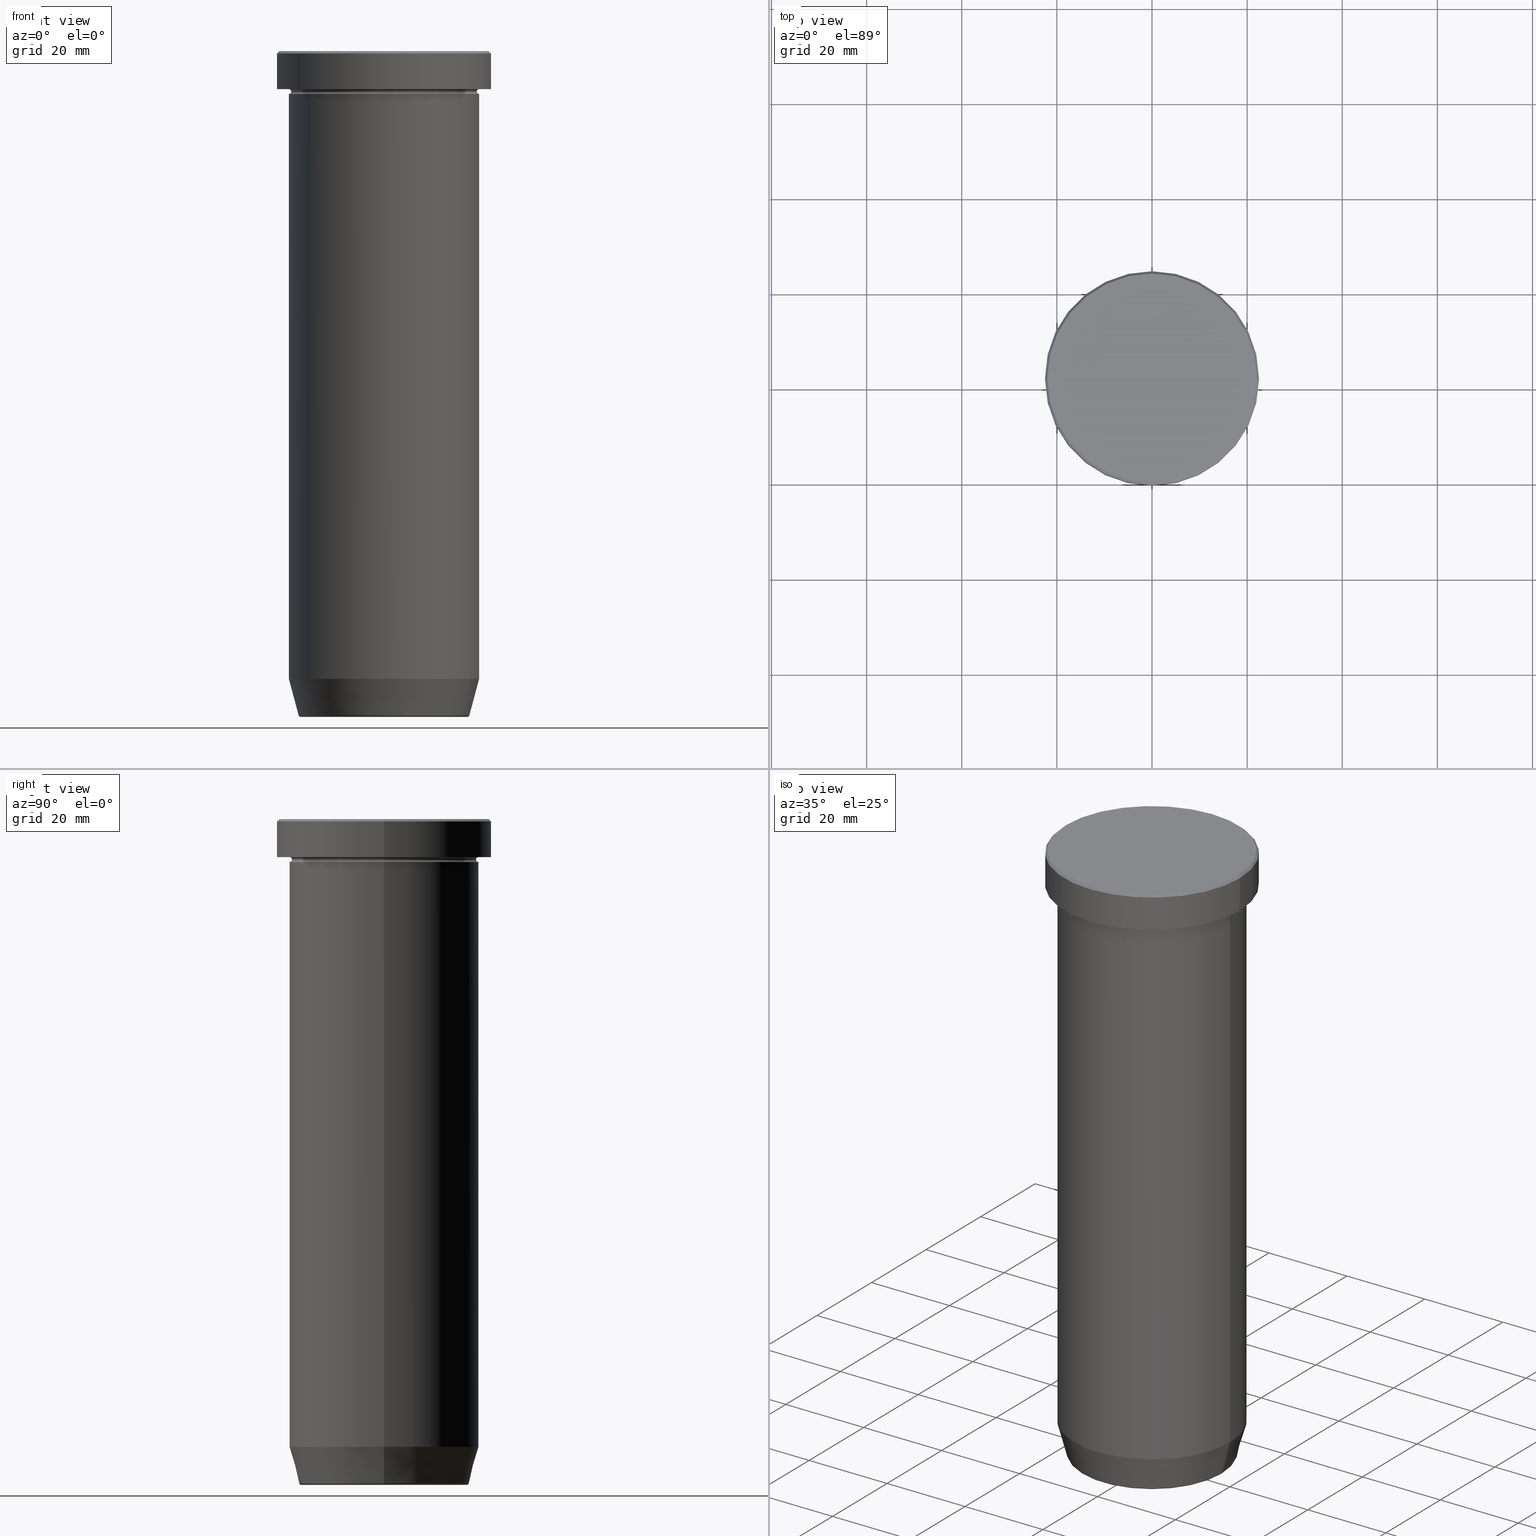
[diagram: canonical four-view strip — front | top / right | iso, engineering-drawing reading convention]
A machine part, canonical four-view strip (front | top / right | iso — engineering-drawing reading convention). The complete STEP part file that produces these views, byte-faithful:
ISO-10303-21;
HEADER;
FILE_DESCRIPTION (( 'STEP AP203' ),
    '1' );
FILE_NAME ('f0d2.STEP',
    '2024-01-02T19:13:32',
    ( '' ),
    ( '' ),
    'SwSTEP 2.0',
    'SolidWorks 2019',
    '' );
FILE_SCHEMA (( 'CONFIG_CONTROL_DESIGN' ));
ENDSEC;

DATA;
#1 = DIRECTION ( 'NONE',  ( -0.000000000000000000, -0.000000000000000000, 1.000000000000000000 ) ) ;
#2 = VERTEX_POINT ( 'NONE', #518 ) ;
#3 = CARTESIAN_POINT ( 'NONE',  ( 0.000000000000000000, 0.000000000000000000, 0.000000000000000000 ) ) ;
#4 = ORIENTED_EDGE ( 'NONE', *, *, #315, .T. ) ;
#5 = EDGE_CURVE ( 'NONE', #394, #498, #497, .T. ) ;
#6 = AXIS2_PLACEMENT_3D ( 'NONE', #367, #561, #52 ) ;
#7 = DIRECTION ( 'NONE',  ( -0.000000000000000000, -0.000000000000000000, 1.000000000000000000 ) ) ;
#8 = ORIENTED_EDGE ( 'NONE', *, *, #281, .F. ) ;
#9 = ADVANCED_FACE ( 'NONE', ( #467 ), #372, .T. ) ;
#10 = EDGE_CURVE ( 'NONE', #368, #412, #303, .T. ) ;
#11 = DIRECTION ( 'NONE',  ( -1.000000000000000000, 0.000000000000000000, 0.000000000000000000 ) ) ;
#12 = ORIENTED_EDGE ( 'NONE', *, *, #471, .T. ) ;
#13 = FACE_OUTER_BOUND ( 'NONE', #399, .T. ) ;
#14 = CIRCLE ( 'NONE', #168, 17.47274296656153680 ) ;
#15 = ORGANIZATION ( 'NEUR�EN�', 'NEUR�EN�', '' ) ;
#16 = DIRECTION ( 'NONE',  ( 0.000000000000000000, -1.000000000000000000, 0.000000000000000000 ) ) ;
#17 = CARTESIAN_POINT ( 'NONE',  ( -17.95570587970606979, 2.324116685748020582E-15, -139.6294095225512706 ) ) ;
#18 = DIRECTION ( 'NONE',  ( 0.000000000000000000, 0.000000000000000000, -1.000000000000000000 ) ) ;
#19 = CC_DESIGN_DATE_AND_TIME_ASSIGNMENT ( #304, #462, ( #503 ) ) ;
#20 = FACE_OUTER_BOUND ( 'NONE', #93, .T. ) ;
#21 = DIRECTION ( 'NONE',  ( -1.000000000000000000, 1.224646799147349509E-16, 0.000000000000000000 ) ) ;
#22 = VECTOR ( 'NONE', #161, 1000.000000000000000 ) ;
#23 = AXIS2_PLACEMENT_3D ( 'NONE', #318, #320, #515 ) ;
#24 = DIRECTION ( 'NONE',  ( -1.000000000000000000, -1.224646799147349509E-16, 0.000000000000000000 ) ) ;
#25 = DIRECTION ( 'NONE',  ( 1.000000000000000000, 0.000000000000000000, 0.000000000000000000 ) ) ;
#26 = EDGE_LOOP ( 'NONE', ( #404, #257, #374, #231 ) ) ;
#27 = EDGE_CURVE ( 'NONE', #2, #327, #236, .T. ) ;
#28 = DATE_AND_TIME ( #175, #402 ) ;
#29 = CARTESIAN_POINT ( 'NONE',  ( -17.85640646055101399, 2.186779101618792051E-15, -140.0000000000000000 ) ) ;
#30 = ORIENTED_EDGE ( 'NONE', *, *, #298, .T. ) ;
#31 = CARTESIAN_POINT ( 'NONE',  ( -20.00000000000000355, 2.449293598294706907E-15, 0.000000000000000000 ) ) ;
#32 = ORIENTED_EDGE ( 'NONE', *, *, #400, .T. ) ;
#33 = VECTOR ( 'NONE', #473, 1000.000000000000000 ) ;
#34 = CARTESIAN_POINT ( 'NONE',  ( 20.00000000000000000, 0.000000000000000000, -35.00000000000000000 ) ) ;
#35 = AXIS2_PLACEMENT_3D ( 'NONE', #385, #289, #243 ) ;
#36 = EDGE_LOOP ( 'NONE', ( #364, #177, #225, #43 ) ) ;
#37 = DIRECTION ( 'NONE',  ( -0.000000000000000000, -0.000000000000000000, 1.000000000000000000 ) ) ;
#38 = EDGE_LOOP ( 'NONE', ( #353, #76 ) ) ;
#39 = APPROVAL ( #272, 'NEUR�EN�' ) ;
#40 = SHAPE_DEFINITION_REPRESENTATION ( #495, #376 ) ;
#41 = CARTESIAN_POINT ( 'NONE',  ( 0.000000000000000000, 0.000000000000000000, -140.0000000000000000 ) ) ;
#42 = APPLICATION_CONTEXT ( 'configuration controlled 3d designs of mechanical parts and assemblies' ) ;
#43 = ORIENTED_EDGE ( 'NONE', *, *, #261, .F. ) ;
#44 = DIRECTION ( 'NONE',  ( 1.000000000000000000, 0.000000000000000000, 0.000000000000000000 ) ) ;
#45 = AXIS2_PLACEMENT_3D ( 'NONE', #166, #446, #346 ) ;
#46 = ORIENTED_EDGE ( 'NONE', *, *, #447, .F. ) ;
#47 = AXIS2_PLACEMENT_3D ( 'NONE', #460, #48, #91 ) ;
#48 = DIRECTION ( 'NONE',  ( -0.000000000000000000, -0.000000000000000000, 1.000000000000000000 ) ) ;
#49 = DIRECTION ( 'NONE',  ( 0.000000000000000000, 0.000000000000000000, -1.000000000000000000 ) ) ;
#50 = FACE_OUTER_BOUND ( 'NONE', #267, .T. ) ;
#51 = ORIENTED_EDGE ( 'NONE', *, *, #482, .F. ) ;
#52 = DIRECTION ( 'NONE',  ( 1.000000000000000000, 0.000000000000000000, 0.000000000000000000 ) ) ;
#53 = ORIENTED_EDGE ( 'NONE', *, *, #27, .F. ) ;
#54 = CIRCLE ( 'NONE', #386, 0.5000000000000004441 ) ;
#55 = EDGE_CURVE ( 'NONE', #255, #470, #14, .T. ) ;
#56 = ADVANCED_FACE ( 'NONE', ( #13 ), #334, .F. ) ;
#57 = CIRCLE ( 'NONE', #210, 22.50000000000000000 ) ;
#58 = DIRECTION ( 'NONE',  ( 1.000000000000000000, 0.000000000000000000, 0.000000000000000000 ) ) ;
#59 = ORIENTED_EDGE ( 'NONE', *, *, #174, .T. ) ;
#60 = CC_DESIGN_PERSON_AND_ORGANIZATION_ASSIGNMENT ( #88, #599, ( #458 ) ) ;
#61 = DIRECTION ( 'NONE',  ( 1.000000000000000000, 0.000000000000000000, 0.000000000000000000 ) ) ;
#62 = CARTESIAN_POINT ( 'NONE',  ( 0.000000000000000000, 0.000000000000000000, -140.0000000000000000 ) ) ;
#63 = CIRCLE ( 'NONE', #397, 22.00000000000000000 ) ;
#64 = AXIS2_PLACEMENT_3D ( 'NONE', #195, #16, #202 ) ;
#65 = DIRECTION ( 'NONE',  ( -0.000000000000000000, -0.000000000000000000, 1.000000000000000000 ) ) ;
#66 = CARTESIAN_POINT ( 'NONE',  ( 0.000000000000000000, 0.000000000000000000, -140.0000000000000000 ) ) ;
#67 = ADVANCED_FACE ( 'NONE', ( #436 ), #251, .F. ) ;
#68 = APPROVAL_PERSON_ORGANIZATION ( #186, #39, #125 ) ;
#69 = CYLINDRICAL_SURFACE ( 'NONE', #79, 22.50000000000000000 ) ;
#70 = FACE_OUTER_BOUND ( 'NONE', #454, .T. ) ;
#71 = DIRECTION ( 'NONE',  ( -0.000000000000000000, -0.000000000000000000, 1.000000000000000000 ) ) ;
#72 = AXIS2_PLACEMENT_3D ( 'NONE', #442, #352, #546 ) ;
#73 = DATE_AND_TIME ( #85, #339 ) ;
#74 = CARTESIAN_POINT ( 'NONE',  ( 0.000000000000000000, 0.000000000000000000, 0.000000000000000000 ) ) ;
#75 = DIRECTION ( 'NONE',  ( 1.000000000000000000, 0.000000000000000000, 0.000000000000000000 ) ) ;
#76 = ORIENTED_EDGE ( 'NONE', *, *, #550, .T. ) ;
#77 = CARTESIAN_POINT ( 'NONE',  ( 0.000000000000000000, 0.000000000000000000, -139.5000000000000000 ) ) ;
#78 = ORIENTED_EDGE ( 'NONE', *, *, #383, .T. ) ;
#79 = AXIS2_PLACEMENT_3D ( 'NONE', #204, #200, #248 ) ;
#80 = AXIS2_PLACEMENT_3D ( 'NONE', #477, #106, #24 ) ;
#81 = ADVANCED_FACE ( 'NONE', ( #527 ), #69, .T. ) ;
#82 = LINE ( 'NONE', #502, #137 ) ;
#83 = CIRCLE ( 'NONE', #47, 22.50000000000000000 ) ;
#84 = VERTEX_POINT ( 'NONE', #381 ) ;
#85 = CALENDAR_DATE ( 2024, 2, 1 ) ;
#86 = DIRECTION ( 'NONE',  ( -1.000000000000000000, 1.224646799147349509E-16, 0.000000000000000000 ) ) ;
#87 = ORIENTED_EDGE ( 'NONE', *, *, #281, .T. ) ;
#88 = PERSON_AND_ORGANIZATION ( #205, #15 ) ;
#89 = DIRECTION ( 'NONE',  ( -0.000000000000000000, -0.000000000000000000, 1.000000000000000000 ) ) ;
#90 = ORIENTED_EDGE ( 'NONE', *, *, #163, .F. ) ;
#91 = DIRECTION ( 'NONE',  ( 1.000000000000000000, 0.000000000000000000, 0.000000000000000000 ) ) ;
#92 = AXIS2_PLACEMENT_3D ( 'NONE', #554, #134, #49 ) ;
#93 = EDGE_LOOP ( 'NONE', ( #191, #516, #217, #214 ) ) ;
#94 = CIRCLE ( 'NONE', #245, 20.00000000000000000 ) ;
#95 = CYLINDRICAL_SURFACE ( 'NONE', #355, 20.00000000000000355 ) ;
#96 = ORIENTED_EDGE ( 'NONE', *, *, #464, .F. ) ;
#97 = DIRECTION ( 'NONE',  ( 1.000000000000000000, 0.000000000000000000, 0.000000000000000000 ) ) ;
#98 = VERTEX_POINT ( 'NONE', #379 ) ;
#99 = CARTESIAN_POINT ( 'NONE',  ( 0.000000000000000000, 0.000000000000000000, -0.5000000000000073275 ) ) ;
#100 = EDGE_CURVE ( 'NONE', #344, #412, #153, .T. ) ;
#101 = VERTEX_POINT ( 'NONE', #569 ) ;
#102 = AXIS2_PLACEMENT_3D ( 'NONE', #577, #71, #250 ) ;
#103 = CARTESIAN_POINT ( 'NONE',  ( -20.00000000000000355, 2.449293598294706907E-15, -132.0000000000000000 ) ) ;
#104 = ORIENTED_EDGE ( 'NONE', *, *, #464, .T. ) ;
#105 = EDGE_CURVE ( 'NONE', #394, #412, #54, .T. ) ;
#106 = DIRECTION ( 'NONE',  ( -1.224646799147353207E-16, 1.000000000000000000, 0.000000000000000000 ) ) ;
#107 = FACE_OUTER_BOUND ( 'NONE', #441, .T. ) ;
#108 = FACE_OUTER_BOUND ( 'NONE', #122, .T. ) ;
#109 = CIRCLE ( 'NONE', #444, 20.00000000000000355 ) ;
#110 = DIRECTION ( 'NONE',  ( -1.000000000000000000, 0.000000000000000000, 0.000000000000000000 ) ) ;
#111 = LINE ( 'NONE', #114, #22 ) ;
#112 = CARTESIAN_POINT ( 'NONE',  ( 20.00000000000000000, 0.000000000000000000, -35.00000000000000000 ) ) ;
#113 = ADVANCED_FACE ( 'NONE', ( #108 ), #286, .F. ) ;
#114 = CARTESIAN_POINT ( 'NONE',  ( 20.00000000000000355, 0.000000000000000000, 0.000000000000000000 ) ) ;
#115 = DATE_AND_TIME ( #456, #345 ) ;
#116 = DIRECTION ( 'NONE',  ( -0.000000000000000000, -0.000000000000000000, 1.000000000000000000 ) ) ;
#117 = AXIS2_PLACEMENT_3D ( 'NONE', #496, #37, #343 ) ;
#118 = AXIS2_PLACEMENT_3D ( 'NONE', #266, #411, #453 ) ;
#119 = CARTESIAN_POINT ( 'NONE',  ( 20.00000000000000000, 2.449293598294706513E-15, -7.999999999999998224 ) ) ;
#120 = ORIENTED_EDGE ( 'NONE', *, *, #203, .F. ) ;
#121 = DIRECTION ( 'NONE',  ( 1.000000000000000000, 0.000000000000000000, 0.000000000000000000 ) ) ;
#122 = EDGE_LOOP ( 'NONE', ( #262, #274 ) ) ;
#123 = DIRECTION ( 'NONE',  ( -1.000000000000000000, 0.000000000000000000, 0.000000000000000000 ) ) ;
#124 = ORIENTED_EDGE ( 'NONE', *, *, #203, .T. ) ;
#125 = APPROVAL_ROLE ( '' ) ;
#126 = AXIS2_PLACEMENT_3D ( 'NONE', #335, #479, #208 ) ;
#127 = CIRCLE ( 'NONE', #418, 22.50000000000000000 ) ;
#128 = DIRECTION ( 'NONE',  ( -0.000000000000000000, -0.000000000000000000, 1.000000000000000000 ) ) ;
#129 = ORIENTED_EDGE ( 'NONE', *, *, #298, .F. ) ;
#130 = APPROVAL_ROLE ( '' ) ;
#131 = CYLINDRICAL_SURFACE ( 'NONE', #23, 20.00000000000000000 ) ;
#132 = ORIENTED_EDGE ( 'NONE', *, *, #215, .F. ) ;
#133 = FACE_OUTER_BOUND ( 'NONE', #360, .T. ) ;
#134 = DIRECTION ( 'NONE',  ( -0.000000000000000000, -1.000000000000000000, -0.000000000000000000 ) ) ;
#135 = SECURITY_CLASSIFICATION_LEVEL ( 'unclassified' ) ;
#136 = CARTESIAN_POINT ( 'NONE',  ( 0.000000000000000000, 20.00000000000000000, -35.00000000000000000 ) ) ;
#137 = VECTOR ( 'NONE', #488, 1000.000000000000114 ) ;
#138 = ORIENTED_EDGE ( 'NONE', *, *, #252, .F. ) ;
#139 = CIRCLE ( 'NONE', #118, 20.00000000000000000 ) ;
#140 = ADVANCED_FACE ( 'NONE', ( #387 ), #209, .F. ) ;
#141 = CARTESIAN_POINT ( 'NONE',  ( -22.50000000000000000, 2.755455298081544778E-15, -7.999999999999998224 ) ) ;
#142 = ORIENTED_EDGE ( 'NONE', *, *, #578, .T. ) ;
#143 = DIRECTION ( 'NONE',  ( -0.000000000000000000, -0.000000000000000000, 1.000000000000000000 ) ) ;
#144 = DIRECTION ( 'NONE',  ( 1.000000000000000000, 0.000000000000000000, 0.000000000000000000 ) ) ;
#145 = EDGE_CURVE ( 'NONE', #465, #101, #342, .T. ) ;
#146 = PLANE ( 'NONE',  #229 ) ;
#147 = ORIENTED_EDGE ( 'NONE', *, *, #199, .T. ) ;
#148 = AXIS2_PLACEMENT_3D ( 'NONE', #440, #299, #121 ) ;
#149 = AXIS2_PLACEMENT_3D ( 'NONE', #249, #484, #198 ) ;
#150 = CARTESIAN_POINT ( 'NONE',  ( 0.000000000000000000, 0.000000000000000000, -8.499999999999996447 ) ) ;
#151 = EDGE_CURVE ( 'NONE', #84, #327, #111, .T. ) ;
#152 = CARTESIAN_POINT ( 'NONE',  ( 0.000000000000000000, 0.000000000000000000, -139.6294095225512706 ) ) ;
#153 = LINE ( 'NONE', #329, #33 ) ;
#154 = ADVANCED_FACE ( 'NONE', ( #107 ), #284, .T. ) ;
#155 = DIRECTION ( 'NONE',  ( -0.000000000000000000, -0.000000000000000000, 1.000000000000000000 ) ) ;
#156 = DIRECTION ( 'NONE',  ( 1.000000000000000000, 0.000000000000000000, 0.000000000000000000 ) ) ;
#157 = AXIS2_PLACEMENT_3D ( 'NONE', #573, #430, #156 ) ;
#158 = VECTOR ( 'NONE', #507, 1000.000000000000000 ) ;
#159 = ADVANCED_FACE ( 'NONE', ( #533 ), #324, .T. ) ;
#160 =( NAMED_UNIT ( * ) SI_UNIT ( $, .STERADIAN. ) SOLID_ANGLE_UNIT ( ) );
#161 = DIRECTION ( 'NONE',  ( -0.000000000000000000, -0.000000000000000000, 1.000000000000000000 ) ) ;
#162 = APPROVAL_DATE_TIME ( #115, #218 ) ;
#163 = EDGE_CURVE ( 'NONE', #451, #394, #581, .T. ) ;
#164 = CARTESIAN_POINT ( 'NONE',  ( -22.00000000000000000, 0.000000000000000000, 0.000000000000000000 ) ) ;
#165 = MANIFOLD_SOLID_BREP ( 'Zkosen�1', #528 ) ;
#166 = CARTESIAN_POINT ( 'NONE',  ( 20.00000000000000000, 0.000000000000000000, -8.499999999999996447 ) ) ;
#167 = ORIENTED_EDGE ( 'NONE', *, *, #215, .T. ) ;
#168 = AXIS2_PLACEMENT_3D ( 'NONE', #62, #18, #428 ) ;
#169 = AXIS2_PLACEMENT_3D ( 'NONE', #348, #541, #123 ) ;
#170 = CARTESIAN_POINT ( 'NONE',  ( 20.00000000000000000, 0.000000000000000000, 0.000000000000000000 ) ) ;
#171 = VERTEX_POINT ( 'NONE', #164 ) ;
#172 = DIRECTION ( 'NONE',  ( -0.000000000000000000, -0.000000000000000000, 1.000000000000000000 ) ) ;
#173 = ORIENTED_EDGE ( 'NONE', *, *, #260, .F. ) ;
#174 = EDGE_CURVE ( 'NONE', #470, #255, #178, .T. ) ;
#175 = CALENDAR_DATE ( 2024, 2, 1 ) ;
#176 = DIRECTION ( 'NONE',  ( 1.224646799147353207E-16, 1.000000000000000000, 0.000000000000000000 ) ) ;
#177 = ORIENTED_EDGE ( 'NONE', *, *, #260, .T. ) ;
#178 = CIRCLE ( 'NONE', #521, 17.47274296656153680 ) ;
#179 = CC_DESIGN_PERSON_AND_ORGANIZATION_ASSIGNMENT ( #183, #505, ( #212 ) ) ;
#180 = AXIS2_PLACEMENT_3D ( 'NONE', #152, #155, #330 ) ;
#181 = FACE_OUTER_BOUND ( 'NONE', #300, .T. ) ;
#182 = ORIENTED_EDGE ( 'NONE', *, *, #261, .T. ) ;
#183 = PERSON_AND_ORGANIZATION ( #205, #15 ) ;
#184 = DIRECTION ( 'NONE',  ( 1.000000000000000000, 0.000000000000000000, 0.000000000000000000 ) ) ;
#185 = EDGE_LOOP ( 'NONE', ( #8, #265, #297, #132 ) ) ;
#186 = PERSON_AND_ORGANIZATION ( #205, #15 ) ;
#187 = CARTESIAN_POINT ( 'NONE',  ( 0.000000000000000000, 0.000000000000000000, 0.000000000000000000 ) ) ;
#188 = EDGE_LOOP ( 'NONE', ( #323, #347 ) ) ;
#189 = DIRECTION ( 'NONE',  ( 1.000000000000000000, 0.000000000000000000, 0.000000000000000000 ) ) ;
#190 = VECTOR ( 'NONE', #306, 1000.000000000000000 ) ;
#191 = ORIENTED_EDGE ( 'NONE', *, *, #311, .F. ) ;
#192 = AXIS2_PLACEMENT_3D ( 'NONE', #551, #89, #97 ) ;
#193 = DIRECTION ( 'NONE',  ( 1.000000000000000000, 0.000000000000000000, 0.000000000000000000 ) ) ;
#194 = ORIENTED_EDGE ( 'NONE', *, *, #311, .T. ) ;
#195 = CARTESIAN_POINT ( 'NONE',  ( 17.47274296656153680, 0.000000000000000000, -139.5000000000000000 ) ) ;
#196 = ORIENTED_EDGE ( 'NONE', *, *, #5, .F. ) ;
#197 = APPLICATION_CONTEXT ( 'configuration controlled 3d designs of mechanical parts and assemblies' ) ;
#198 = DIRECTION ( 'NONE',  ( -1.000000000000000000, 0.000000000000000000, 0.000000000000000000 ) ) ;
#199 = EDGE_CURVE ( 'NONE', #98, #101, #316, .T. ) ;
#200 = DIRECTION ( 'NONE',  ( -0.000000000000000000, -0.000000000000000000, 1.000000000000000000 ) ) ;
#201 = VECTOR ( 'NONE', #128, 1000.000000000000000 ) ;
#202 = DIRECTION ( 'NONE',  ( 0.000000000000000000, 0.000000000000000000, -1.000000000000000000 ) ) ;
#203 = EDGE_CURVE ( 'NONE', #233, #171, #566, .T. ) ;
#204 = CARTESIAN_POINT ( 'NONE',  ( 0.000000000000000000, 0.000000000000000000, 0.000000000000000000 ) ) ;
#205 = PERSON ( 'NEUR�EN�', 'NEUR�EN�', 'NEUR�EN�', ('NEUR�EN�'), ('NEUR�EN�'), ('NEUR�EN�') ) ;
#206 = CARTESIAN_POINT ( 'NONE',  ( 0.000000000000000000, 0.000000000000000000, -8.499999999999998224 ) ) ;
#207 = PERSON_AND_ORGANIZATION ( #205, #15 ) ;
#208 = DIRECTION ( 'NONE',  ( -1.000000000000000000, 0.000000000000000000, -0.000000000000000000 ) ) ;
#209 = TOROIDAL_SURFACE ( 'NONE', #547, 20.00000000000000000, 0.5000000000000000000 ) ;
#210 = AXIS2_PLACEMENT_3D ( 'NONE', #99, #277, #58 ) ;
#211 = EDGE_CURVE ( 'NONE', #171, #233, #63, .T. ) ;
#212 = SECURITY_CLASSIFICATION ( '', '', #135 ) ;
#213 = DIRECTION ( 'NONE',  ( -0.000000000000000000, -0.000000000000000000, 1.000000000000000000 ) ) ;
#214 = ORIENTED_EDGE ( 'NONE', *, *, #199, .F. ) ;
#215 = EDGE_CURVE ( 'NONE', #451, #368, #487, .T. ) ;
#216 = CARTESIAN_POINT ( 'NONE',  ( 0.000000000000000000, 0.000000000000000000, -8.499999999999996447 ) ) ;
#217 = ORIENTED_EDGE ( 'NONE', *, *, #378, .T. ) ;
#218 = APPROVAL ( #574, 'NEUR�EN�' ) ;
#219 = ORIENTED_EDGE ( 'NONE', *, *, #10, .T. ) ;
#220 = CIRCLE ( 'NONE', #287, 19.50000000000000000 ) ;
#221 = CONICAL_SURFACE ( 'NONE', #149, 22.00000000000000000, 0.7853981633974415066 ) ;
#222 = FACE_OUTER_BOUND ( 'NONE', #310, .T. ) ;
#223 = ORIENTED_EDGE ( 'NONE', *, *, #151, .F. ) ;
#224 = DIRECTION ( 'NONE',  ( -0.000000000000000000, -0.000000000000000000, 1.000000000000000000 ) ) ;
#225 = ORIENTED_EDGE ( 'NONE', *, *, #400, .F. ) ;
#226 = UNCERTAINTY_MEASURE_WITH_UNIT (LENGTH_MEASURE( 1.000000000000000082E-05 ), #525, 'distance_accuracy_value', 'NONE');
#227 = DIRECTION ( 'NONE',  ( -0.000000000000000000, -0.000000000000000000, 1.000000000000000000 ) ) ;
#228 = EDGE_LOOP ( 'NONE', ( #510, #588, #557, #307 ) ) ;
#229 = AXIS2_PLACEMENT_3D ( 'NONE', #241, #373, #474 ) ;
#230 = DIRECTION ( 'NONE',  ( 1.000000000000000000, 0.000000000000000000, 0.000000000000000000 ) ) ;
#231 = ORIENTED_EDGE ( 'NONE', *, *, #246, .F. ) ;
#232 = FACE_OUTER_BOUND ( 'NONE', #524, .T. ) ;
#233 = VERTEX_POINT ( 'NONE', #439 ) ;
#234 = DIRECTION ( 'NONE',  ( 0.000000000000000000, 0.000000000000000000, -1.000000000000000000 ) ) ;
#235 = ORIENTED_EDGE ( 'NONE', *, *, #211, .T. ) ;
#236 = CIRCLE ( 'NONE', #157, 20.00000000000000000 ) ;
#237 = CARTESIAN_POINT ( 'NONE',  ( 17.47274296656153680, 0.000000000000000000, -140.0000000000000000 ) ) ;
#238 = VERTEX_POINT ( 'NONE', #119 ) ;
#239 = CARTESIAN_POINT ( 'NONE',  ( 20.00000000000000000, 0.000000000000000000, -8.999999999999998224 ) ) ;
#240 = ORIENTED_EDGE ( 'NONE', *, *, #482, .T. ) ;
#241 = CARTESIAN_POINT ( 'NONE',  ( 0.000000000000000000, 22.50000000000000000, -7.999999999999998224 ) ) ;
#242 = DIRECTION ( 'NONE',  ( -1.000000000000000000, 0.000000000000000000, 0.000000000000000000 ) ) ;
#243 = DIRECTION ( 'NONE',  ( 1.000000000000000000, 0.000000000000000000, 0.000000000000000000 ) ) ;
#244 = VECTOR ( 'NONE', #65, 1000.000000000000000 ) ;
#245 = AXIS2_PLACEMENT_3D ( 'NONE', #563, #466, #44 ) ;
#246 = EDGE_CURVE ( 'NONE', #598, #392, #375, .T. ) ;
#247 = PERSON_AND_ORGANIZATION_ROLE ( 'design_owner' ) ;
#248 = DIRECTION ( 'NONE',  ( 1.000000000000000000, 0.000000000000000000, 0.000000000000000000 ) ) ;
#249 = CARTESIAN_POINT ( 'NONE',  ( 0.000000000000000000, 0.000000000000000000, 0.000000000000000000 ) ) ;
#250 = DIRECTION ( 'NONE',  ( 1.000000000000000000, 0.000000000000000000, 0.000000000000000000 ) ) ;
#251 = TOROIDAL_SURFACE ( 'NONE', #511, 20.00000000000000000, 0.5000000000000000000 ) ;
#252 = EDGE_CURVE ( 'NONE', #508, #98, #535, .T. ) ;
#253 = CARTESIAN_POINT ( 'NONE',  ( -17.47274296656153680, 2.169366823916868503E-15, -140.0000000000000000 ) ) ;
#254 = DIRECTION ( 'NONE',  ( -0.000000000000000000, -0.000000000000000000, 1.000000000000000000 ) ) ;
#255 = VERTEX_POINT ( 'NONE', #253 ) ;
#256 = LINE ( 'NONE', #393, #190 ) ;
#257 = ORIENTED_EDGE ( 'NONE', *, *, #174, .F. ) ;
#258 = CLOSED_SHELL ( 'NONE', ( #159, #341, #384, #113, #154, #559, #545, #290 ) ) ;
#259 = CARTESIAN_POINT ( 'NONE',  ( 22.50000000000000000, 0.000000000000000000, 0.000000000000000000 ) ) ;
#260 = EDGE_CURVE ( 'NONE', #598, #492, #590, .T. ) ;
#261 = EDGE_CURVE ( 'NONE', #392, #84, #82, .T. ) ;
#262 = ORIENTED_EDGE ( 'NONE', *, *, #447, .T. ) ;
#263 = COORDINATED_UNIVERSAL_TIME_OFFSET ( 1, 0, .AHEAD. ) ;
#264 = FACE_OUTER_BOUND ( 'NONE', #36, .T. ) ;
#265 = ORIENTED_EDGE ( 'NONE', *, *, #105, .T. ) ;
#266 = CARTESIAN_POINT ( 'NONE',  ( 0.000000000000000000, 0.000000000000000000, -35.00000000000000000 ) ) ;
#267 = EDGE_LOOP ( 'NONE', ( #32, #4, #46, #223 ) ) ;
#268 = PERSON_AND_ORGANIZATION ( #205, #15 ) ;
#269 = VECTOR ( 'NONE', #296, 1000.000000000000114 ) ;
#270 = DIRECTION ( 'NONE',  ( 0.000000000000000000, -0.000000000000000000, 1.000000000000000000 ) ) ;
#271 = ORIENTED_EDGE ( 'NONE', *, *, #246, .T. ) ;
#272 = APPROVAL_STATUS ( 'not_yet_approved' ) ;
#273 = DIRECTION ( 'NONE',  ( -1.000000000000000000, 0.000000000000000000, -0.000000000000000000 ) ) ;
#274 = ORIENTED_EDGE ( 'NONE', *, *, #27, .T. ) ;
#275 = CARTESIAN_POINT ( 'NONE',  ( 19.50000000000000000, 0.000000000000000000, -8.499999999999996447 ) ) ;
#276 = ORIENTED_EDGE ( 'NONE', *, *, #401, .T. ) ;
#277 = DIRECTION ( 'NONE',  ( 0.000000000000000000, 0.000000000000000000, -1.000000000000000000 ) ) ;
#278 = VECTOR ( 'NONE', #172, 1000.000000000000000 ) ;
#279 = ORIENTED_EDGE ( 'NONE', *, *, #578, .F. ) ;
#280 = CC_DESIGN_APPROVAL ( #351, ( #458 ) ) ;
#281 = EDGE_CURVE ( 'NONE', #394, #451, #220, .T. ) ;
#282 = CARTESIAN_POINT ( 'NONE',  ( 0.000000000000000000, 0.000000000000000000, -140.0000000000000000 ) ) ;
#283 = FACE_OUTER_BOUND ( 'NONE', #188, .T. ) ;
#284 = CYLINDRICAL_SURFACE ( 'NONE', #295, 20.00000000000000355 ) ;
#285 = DIRECTION ( 'NONE',  ( -0.000000000000000000, -0.000000000000000000, 1.000000000000000000 ) ) ;
#286 = PLANE ( 'NONE',  #126 ) ;
#287 = AXIS2_PLACEMENT_3D ( 'NONE', #216, #224, #75 ) ;
#288 = AXIS2_PLACEMENT_3D ( 'NONE', #359, #1, #463 ) ;
#289 = DIRECTION ( 'NONE',  ( 0.000000000000000000, 0.000000000000000000, 1.000000000000000000 ) ) ;
#290 = ADVANCED_FACE ( 'NONE', ( #538 ), #476, .T. ) ;
#291 = CARTESIAN_POINT ( 'NONE',  ( 0.000000000000000000, 0.000000000000000000, 0.000000000000000000 ) ) ;
#292 = DIRECTION ( 'NONE',  ( 0.000000000000000000, -0.000000000000000000, 1.000000000000000000 ) ) ;
#293 = PERSON_AND_ORGANIZATION ( #205, #15 ) ;
#294 = PLANE ( 'NONE',  #522 ) ;
#295 = AXIS2_PLACEMENT_3D ( 'NONE', #291, #338, #483 ) ;
#296 = DIRECTION ( 'NONE',  ( -0.2588190451025212391, 3.169619151431771721E-17, 0.9659258262890680902 ) ) ;
#297 = ORIENTED_EDGE ( 'NONE', *, *, #433, .T. ) ;
#298 = EDGE_CURVE ( 'NONE', #492, #84, #109, .T. ) ;
#299 = DIRECTION ( 'NONE',  ( -0.000000000000000000, -0.000000000000000000, 1.000000000000000000 ) ) ;
#300 = EDGE_LOOP ( 'NONE', ( #235, #124 ) ) ;
#301 = LINE ( 'NONE', #31, #530 ) ;
#302 = ORIENTED_EDGE ( 'NONE', *, *, #163, .T. ) ;
#303 = CIRCLE ( 'NONE', #365, 20.00000000000000000 ) ;
#304 = DATE_AND_TIME ( #543, #409 ) ;
#305 = CIRCLE ( 'NONE', #427, 20.00000000000000000 ) ;
#306 = DIRECTION ( 'NONE',  ( 0.7071067811865426878, 8.659560562354874926E-17, -0.7071067811865524577 ) ) ;
#307 = ORIENTED_EDGE ( 'NONE', *, *, #490, .F. ) ;
#308 = COORDINATED_UNIVERSAL_TIME_OFFSET ( 1, 0, .AHEAD. ) ;
#309 = CARTESIAN_POINT ( 'NONE',  ( -22.00000000000000000, 0.000000000000000000, 0.000000000000000000 ) ) ;
#310 = EDGE_LOOP ( 'NONE', ( #87, #142, #586, #196 ) ) ;
#311 = EDGE_CURVE ( 'NONE', #233, #98, #256, .T. ) ;
#312 = FACE_OUTER_BOUND ( 'NONE', #443, .T. ) ;
#313 = CARTESIAN_POINT ( 'NONE',  ( 0.000000000000000000, 0.000000000000000000, 0.000000000000000000 ) ) ;
#314 = CC_DESIGN_PERSON_AND_ORGANIZATION_ASSIGNMENT ( #481, #247, ( #468 ) ) ;
#315 = EDGE_CURVE ( 'NONE', #492, #2, #301, .T. ) ;
#316 = CIRCLE ( 'NONE', #72, 22.50000000000000000 ) ;
#317 = AXIS2_PLACEMENT_3D ( 'NONE', #136, #234, #273 ) ;
#318 = CARTESIAN_POINT ( 'NONE',  ( 0.000000000000000000, 0.000000000000000000, 0.000000000000000000 ) ) ;
#319 = ORIENTED_EDGE ( 'NONE', *, *, #151, .T. ) ;
#320 = DIRECTION ( 'NONE',  ( -0.000000000000000000, -0.000000000000000000, 1.000000000000000000 ) ) ;
#321 = ORIENTED_EDGE ( 'NONE', *, *, #433, .F. ) ;
#322 = DIRECTION ( 'NONE',  ( -0.000000000000000000, -0.000000000000000000, 1.000000000000000000 ) ) ;
#323 = ORIENTED_EDGE ( 'NONE', *, *, #383, .F. ) ;
#324 = TOROIDAL_SURFACE ( 'NONE', #102, 17.47274296656153680, 0.5000000000000000000 ) ;
#325 = CIRCLE ( 'NONE', #478, 20.00000000000000000 ) ;
#326 = EDGE_CURVE ( 'NONE', #542, #368, #582, .T. ) ;
#327 = VERTEX_POINT ( 'NONE', #34 ) ;
#328 = CARTESIAN_POINT ( 'NONE',  ( 0.000000000000000000, 1.102182119232618069E-14, -140.0000000000000000 ) ) ;
#329 = CARTESIAN_POINT ( 'NONE',  ( -20.00000000000000000, 2.449293598294706513E-15, 0.000000000000000000 ) ) ;
#330 = DIRECTION ( 'NONE',  ( -1.000000000000000000, 0.000000000000000000, 0.000000000000000000 ) ) ;
#331 = CARTESIAN_POINT ( 'NONE',  ( -20.00000000000000000, 2.449293598294706513E-15, -8.499999999999996447 ) ) ;
#332 = ADVANCED_FACE ( 'NONE', ( #222 ), #583, .F. ) ;
#333 = DIRECTION ( 'NONE',  ( 1.000000000000000000, 0.000000000000000000, 0.000000000000000000 ) ) ;
#334 = TOROIDAL_SURFACE ( 'NONE', #455, 20.00000000000000000, 0.5000000000000000000 ) ;
#335 = CARTESIAN_POINT ( 'NONE',  ( 0.000000000000000000, -3.469446951953614189E-15, -35.00000000000000000 ) ) ;
#336 = APPROVAL_PERSON_ORGANIZATION ( #207, #218, #438 ) ;
#337 = EDGE_CURVE ( 'NONE', #255, #598, #417, .T. ) ;
#338 = DIRECTION ( 'NONE',  ( -0.000000000000000000, -0.000000000000000000, 1.000000000000000000 ) ) ;
#339 = LOCAL_TIME ( 20, 13, 32.00000000000000000, #501 ) ;
#340 = DATE_AND_TIME ( #390, #500 ) ;
#341 = ADVANCED_FACE ( 'NONE', ( #264 ), #499, .T. ) ;
#342 = LINE ( 'NONE', #526, #244 ) ;
#343 = DIRECTION ( 'NONE',  ( -1.000000000000000000, 0.000000000000000000, 0.000000000000000000 ) ) ;
#344 = VERTEX_POINT ( 'NONE', #405 ) ;
#345 = LOCAL_TIME ( 20, 13, 32.00000000000000000, #263 ) ;
#346 = DIRECTION ( 'NONE',  ( 0.000000000000000000, 0.000000000000000000, -1.000000000000000000 ) ) ;
#347 = ORIENTED_EDGE ( 'NONE', *, *, #471, .F. ) ;
#348 = CARTESIAN_POINT ( 'NONE',  ( 0.000000000000000000, 0.000000000000000000, -8.499999999999998224 ) ) ;
#349 = ORIENTED_EDGE ( 'NONE', *, *, #5, .T. ) ;
#350 = COORDINATED_UNIVERSAL_TIME_OFFSET ( 1, 0, .AHEAD. ) ;
#351 = APPROVAL ( #512, 'NEUR�EN�' ) ;
#352 = DIRECTION ( 'NONE',  ( 0.000000000000000000, 0.000000000000000000, -1.000000000000000000 ) ) ;
#353 = ORIENTED_EDGE ( 'NONE', *, *, #480, .T. ) ;
#354 = PERSON_AND_ORGANIZATION ( #205, #15 ) ;
#355 = AXIS2_PLACEMENT_3D ( 'NONE', #3, #322, #230 ) ;
#356 = ADVANCED_FACE ( 'NONE', ( #181 ), #294, .T. ) ;
#357 = DIRECTION ( 'NONE',  ( 1.000000000000000000, 0.000000000000000000, 0.000000000000000000 ) ) ;
#358 = EDGE_LOOP ( 'NONE', ( #279, #302, #349, #461 ) ) ;
#359 = CARTESIAN_POINT ( 'NONE',  ( 0.000000000000000000, 0.000000000000000000, 0.000000000000000000 ) ) ;
#360 = EDGE_LOOP ( 'NONE', ( #494, #96 ) ) ;
#361 = MANIFOLD_SOLID_BREP ( 'Zaoblit4', #258 ) ;
#362 = APPROVAL_DATE_TIME ( #73, #39 ) ;
#363 = DIRECTION ( 'NONE',  ( 0.000000000000000000, 0.000000000000000000, -1.000000000000000000 ) ) ;
#364 = ORIENTED_EDGE ( 'NONE', *, *, #544, .T. ) ;
#365 = AXIS2_PLACEMENT_3D ( 'NONE', #520, #423, #571 ) ;
#366 = CIRCLE ( 'NONE', #6, 20.00000000000000000 ) ;
#367 = CARTESIAN_POINT ( 'NONE',  ( 0.000000000000000000, 0.000000000000000000, -35.00000000000000000 ) ) ;
#368 = VERTEX_POINT ( 'NONE', #239 ) ;
#369 = ADVANCED_FACE ( 'NONE', ( #596 ), #517, .T. ) ;
#370 = ADVANCED_FACE ( 'NONE', ( #312 ), #131, .T. ) ;
#371 = CARTESIAN_POINT ( 'NONE',  ( 0.000000000000000000, 0.000000000000000000, -7.999999999999998224 ) ) ;
#372 = CYLINDRICAL_SURFACE ( 'NONE', #425, 22.50000000000000000 ) ;
#373 = DIRECTION ( 'NONE',  ( 0.000000000000000000, 0.000000000000000000, -1.000000000000000000 ) ) ;
#374 = ORIENTED_EDGE ( 'NONE', *, *, #490, .T. ) ;
#375 = CIRCLE ( 'NONE', #117, 17.95570587970606979 ) ;
#376 = ADVANCED_BREP_SHAPE_REPRESENTATION ( 'f0d2', ( #165, #361, #35 ), #377 ) ;
#377 =( GEOMETRIC_REPRESENTATION_CONTEXT ( 3 ) GLOBAL_UNCERTAINTY_ASSIGNED_CONTEXT ( ( #226 ) ) GLOBAL_UNIT_ASSIGNED_CONTEXT ( ( #525, #523, #160 ) ) REPRESENTATION_CONTEXT ( 'NONE', 'WORKASPACE' ) );
#378 = EDGE_CURVE ( 'NONE', #171, #101, #509, .T. ) ;
#379 = CARTESIAN_POINT ( 'NONE',  ( 22.50000000000000000, 0.000000000000000000, -0.5000000000000073275 ) ) ;
#380 = CARTESIAN_POINT ( 'NONE',  ( 22.50000000000000000, 0.000000000000000000, -7.999999999999998224 ) ) ;
#381 = CARTESIAN_POINT ( 'NONE',  ( 20.00000000000000355, 0.000000000000000000, -132.0000000000000000 ) ) ;
#382 = DIRECTION ( 'NONE',  ( 1.000000000000000000, 0.000000000000000000, 0.000000000000000000 ) ) ;
#383 = EDGE_CURVE ( 'NONE', #508, #465, #83, .T. ) ;
#384 = ADVANCED_FACE ( 'NONE', ( #50 ), #95, .T. ) ;
#385 = CARTESIAN_POINT ( 'NONE',  ( 0.000000000000000000, 0.000000000000000000, 0.000000000000000000 ) ) ;
#386 = AXIS2_PLACEMENT_3D ( 'NONE', #331, #432, #21 ) ;
#387 = FACE_OUTER_BOUND ( 'NONE', #185, .T. ) ;
#388 = CIRCLE ( 'NONE', #180, 17.95570587970606979 ) ;
#389 = CC_DESIGN_PERSON_AND_ORGANIZATION_ASSIGNMENT ( #268, #407, ( #503 ) ) ;
#390 = CALENDAR_DATE ( 2024, 2, 1 ) ;
#391 = DIRECTION ( 'NONE',  ( 1.000000000000000000, 0.000000000000000000, 0.000000000000000000 ) ) ;
#392 = VERTEX_POINT ( 'NONE', #422 ) ;
#393 = CARTESIAN_POINT ( 'NONE',  ( 22.00000000000000000, 2.694222958124176809E-15, 0.000000000000000000 ) ) ;
#394 = VERTEX_POINT ( 'NONE', #553 ) ;
#395 = DIRECTION ( 'NONE',  ( -0.000000000000000000, -0.000000000000000000, 1.000000000000000000 ) ) ;
#396 = EDGE_LOOP ( 'NONE', ( #276, #552, #448, #565 ) ) ;
#397 = AXIS2_PLACEMENT_3D ( 'NONE', #491, #116, #450 ) ;
#398 = AXIS2_PLACEMENT_3D ( 'NONE', #328, #292, #333 ) ;
#399 = EDGE_LOOP ( 'NONE', ( #539, #90, #167, #219 ) ) ;
#400 = EDGE_CURVE ( 'NONE', #84, #492, #445, .T. ) ;
#401 = EDGE_CURVE ( 'NONE', #542, #344, #139, .T. ) ;
#402 = LOCAL_TIME ( 20, 13, 32.00000000000000000, #350 ) ;
#403 = CARTESIAN_POINT ( 'NONE',  ( 0.000000000000000000, 0.000000000000000000, -132.0000000000000000 ) ) ;
#404 = ORIENTED_EDGE ( 'NONE', *, *, #337, .F. ) ;
#405 = CARTESIAN_POINT ( 'NONE',  ( -20.00000000000000000, 2.449293598294706513E-15, -35.00000000000000000 ) ) ;
#406 = ORIENTED_EDGE ( 'NONE', *, *, #378, .F. ) ;
#407 = PERSON_AND_ORGANIZATION_ROLE ( 'creator' ) ;
#408 = CONICAL_SURFACE ( 'NONE', #560, 17.85640646055101399, 0.2617993877991499629 ) ;
#409 = LOCAL_TIME ( 20, 13, 32.00000000000000000, #308 ) ;
#410 = CC_DESIGN_DATE_AND_TIME_ASSIGNMENT ( #28, #449, ( #212 ) ) ;
#411 = DIRECTION ( 'NONE',  ( -0.000000000000000000, -0.000000000000000000, 1.000000000000000000 ) ) ;
#412 = VERTEX_POINT ( 'NONE', #413 ) ;
#413 = CARTESIAN_POINT ( 'NONE',  ( -20.00000000000000000, 2.449293598294706513E-15, -8.999999999999998224 ) ) ;
#414 = EDGE_LOOP ( 'NONE', ( #173, #271, #182, #129 ) ) ;
#415 = CARTESIAN_POINT ( 'NONE',  ( 0.000000000000000000, 0.000000000000000000, -35.00000000000000000 ) ) ;
#416 = ORIENTED_EDGE ( 'NONE', *, *, #100, .F. ) ;
#417 = CIRCLE ( 'NONE', #536, 0.5000000000000004441 ) ;
#418 = AXIS2_PLACEMENT_3D ( 'NONE', #419, #7, #193 ) ;
#419 = CARTESIAN_POINT ( 'NONE',  ( 0.000000000000000000, 0.000000000000000000, -7.999999999999998224 ) ) ;
#420 = ORIENTED_EDGE ( 'NONE', *, *, #315, .F. ) ;
#421 = ADVANCED_FACE ( 'NONE', ( #232 ), #513, .T. ) ;
#422 = CARTESIAN_POINT ( 'NONE',  ( 17.95570587970606979, 0.000000000000000000, -139.6294095225512706 ) ) ;
#423 = DIRECTION ( 'NONE',  ( -0.000000000000000000, -0.000000000000000000, 1.000000000000000000 ) ) ;
#424 = DIRECTION ( 'NONE',  ( -0.000000000000000000, -0.000000000000000000, 1.000000000000000000 ) ) ;
#425 = AXIS2_PLACEMENT_3D ( 'NONE', #313, #564, #144 ) ;
#426 = MECHANICAL_CONTEXT ( 'NONE', #42, 'mechanical' ) ;
#427 = AXIS2_PLACEMENT_3D ( 'NONE', #415, #469, #189 ) ;
#428 = DIRECTION ( 'NONE',  ( 1.000000000000000000, 0.000000000000000000, 0.000000000000000000 ) ) ;
#429 = DIRECTION ( 'NONE',  ( -0.000000000000000000, -0.000000000000000000, 1.000000000000000000 ) ) ;
#430 = DIRECTION ( 'NONE',  ( -0.000000000000000000, -0.000000000000000000, 1.000000000000000000 ) ) ;
#431 = APPLICATION_PROTOCOL_DEFINITION ( 'international standard', 'config_control_design', 1994, #197 ) ;
#432 = DIRECTION ( 'NONE',  ( 1.224646799147353207E-16, 1.000000000000000000, 0.000000000000000000 ) ) ;
#433 = EDGE_CURVE ( 'NONE', #412, #368, #94, .T. ) ;
#434 = ADVANCED_FACE ( 'NONE', ( #133 ), #556, .T. ) ;
#435 = FACE_BOUND ( 'NONE', #38, .T. ) ;
#436 = FACE_OUTER_BOUND ( 'NONE', #358, .T. ) ;
#437 = AXIS2_PLACEMENT_3D ( 'NONE', #187, #363, #11 ) ;
#438 = APPROVAL_ROLE ( '' ) ;
#439 = CARTESIAN_POINT ( 'NONE',  ( 22.00000000000000000, 2.724839128102860991E-15, 0.000000000000000000 ) ) ;
#440 = CARTESIAN_POINT ( 'NONE',  ( 0.000000000000000000, 0.000000000000000000, 0.000000000000000000 ) ) ;
#441 = EDGE_LOOP ( 'NONE', ( #420, #30, #319, #53 ) ) ;
#442 = CARTESIAN_POINT ( 'NONE',  ( 0.000000000000000000, 0.000000000000000000, -0.5000000000000073275 ) ) ;
#443 = EDGE_LOOP ( 'NONE', ( #416, #104, #537, #321 ) ) ;
#444 = AXIS2_PLACEMENT_3D ( 'NONE', #403, #254, #587 ) ;
#445 = CIRCLE ( 'NONE', #192, 20.00000000000000355 ) ;
#446 = DIRECTION ( 'NONE',  ( 0.000000000000000000, -1.000000000000000000, 0.000000000000000000 ) ) ;
#447 = EDGE_CURVE ( 'NONE', #327, #2, #305, .T. ) ;
#448 = ORIENTED_EDGE ( 'NONE', *, *, #10, .F. ) ;
#449 = DATE_TIME_ROLE ( 'classification_date' ) ;
#450 = DIRECTION ( 'NONE',  ( 1.000000000000000000, 0.000000000000000000, 0.000000000000000000 ) ) ;
#451 = VERTEX_POINT ( 'NONE', #275 ) ;
#452 = PRODUCT_RELATED_PRODUCT_CATEGORY ( 'detail', '', ( #468 ) ) ;
#453 = DIRECTION ( 'NONE',  ( 1.000000000000000000, 0.000000000000000000, 0.000000000000000000 ) ) ;
#454 = EDGE_LOOP ( 'NONE', ( #59, #548 ) ) ;
#455 = AXIS2_PLACEMENT_3D ( 'NONE', #150, #424, #382 ) ;
#456 = CALENDAR_DATE ( 2024, 2, 1 ) ;
#457 = AXIS2_PLACEMENT_3D ( 'NONE', #41, #227, #357 ) ;
#458 = PRODUCT_DEFINITION_FORMATION_WITH_SPECIFIED_SOURCE ( 'LIBOVOLN�', '', #468, .NOT_KNOWN. ) ;
#459 = DESIGN_CONTEXT ( 'detailed design', #197, 'design' ) ;
#460 = CARTESIAN_POINT ( 'NONE',  ( 0.000000000000000000, 0.000000000000000000, -7.999999999999998224 ) ) ;
#461 = ORIENTED_EDGE ( 'NONE', *, *, #550, .F. ) ;
#462 = DATE_TIME_ROLE ( 'creation_date' ) ;
#463 = DIRECTION ( 'NONE',  ( 1.000000000000000000, 0.000000000000000000, 0.000000000000000000 ) ) ;
#464 = EDGE_CURVE ( 'NONE', #344, #542, #366, .T. ) ;
#465 = VERTEX_POINT ( 'NONE', #141 ) ;
#466 = DIRECTION ( 'NONE',  ( -0.000000000000000000, -0.000000000000000000, 1.000000000000000000 ) ) ;
#467 = FACE_OUTER_BOUND ( 'NONE', #580, .T. ) ;
#468 = PRODUCT ( 'f0d2', 'f0d2', '', ( #426 ) ) ;
#469 = DIRECTION ( 'NONE',  ( -0.000000000000000000, -0.000000000000000000, 1.000000000000000000 ) ) ;
#470 = VERTEX_POINT ( 'NONE', #237 ) ;
#471 = EDGE_CURVE ( 'NONE', #465, #508, #127, .T. ) ;
#472 = CARTESIAN_POINT ( 'NONE',  ( -20.00000000000000000, 0.000000000000000000, -7.999999999999998224 ) ) ;
#473 = DIRECTION ( 'NONE',  ( -0.000000000000000000, -0.000000000000000000, 1.000000000000000000 ) ) ;
#474 = DIRECTION ( 'NONE',  ( -1.000000000000000000, 0.000000000000000000, -0.000000000000000000 ) ) ;
#475 = DIRECTION ( 'NONE',  ( 0.000000000000000000, 0.000000000000000000, -1.000000000000000000 ) ) ;
#476 = TOROIDAL_SURFACE ( 'NONE', #558, 17.47274296656153680, 0.5000000000000000000 ) ;
#477 = CARTESIAN_POINT ( 'NONE',  ( 20.00000000000000000, 2.449293598294706513E-15, -8.499999999999998224 ) ) ;
#478 = AXIS2_PLACEMENT_3D ( 'NONE', #570, #429, #110 ) ;
#479 = DIRECTION ( 'NONE',  ( 0.000000000000000000, 0.000000000000000000, -1.000000000000000000 ) ) ;
#480 = EDGE_CURVE ( 'NONE', #498, #238, #567, .T. ) ;
#481 = PERSON_AND_ORGANIZATION ( #205, #15 ) ;
#482 = EDGE_CURVE ( 'NONE', #101, #98, #57, .T. ) ;
#483 = DIRECTION ( 'NONE',  ( 1.000000000000000000, 0.000000000000000000, 0.000000000000000000 ) ) ;
#484 = DIRECTION ( 'NONE',  ( 0.000000000000000000, 0.000000000000000000, -1.000000000000000000 ) ) ;
#485 = CARTESIAN_POINT ( 'NONE',  ( 0.000000000000000000, 0.000000000000000000, -8.499999999999996447 ) ) ;
#486 = APPROVAL_DATE_TIME ( #340, #351 ) ;
#487 = CIRCLE ( 'NONE', #45, 0.5000000000000004441 ) ;
#488 = DIRECTION ( 'NONE',  ( 0.2588190451025212391, 0.000000000000000000, 0.9659258262890680902 ) ) ;
#489 = CIRCLE ( 'NONE', #80, 0.5000000000000004441 ) ;
#490 = EDGE_CURVE ( 'NONE', #470, #392, #549, .T. ) ;
#491 = CARTESIAN_POINT ( 'NONE',  ( 0.000000000000000000, 0.000000000000000000, 0.000000000000000000 ) ) ;
#492 = VERTEX_POINT ( 'NONE', #103 ) ;
#493 = DIRECTION ( 'NONE',  ( -0.000000000000000000, -0.000000000000000000, 1.000000000000000000 ) ) ;
#494 = ORIENTED_EDGE ( 'NONE', *, *, #401, .F. ) ;
#495 = PRODUCT_DEFINITION_SHAPE ( 'NONE', 'NONE',  #503 ) ;
#496 = CARTESIAN_POINT ( 'NONE',  ( 0.000000000000000000, 0.000000000000000000, -139.6294095225512706 ) ) ;
#497 = CIRCLE ( 'NONE', #92, 0.5000000000000004441 ) ;
#498 = VERTEX_POINT ( 'NONE', #472 ) ;
#499 = CONICAL_SURFACE ( 'NONE', #457, 17.85640646055101399, 0.2617993877991499629 ) ;
#500 = LOCAL_TIME ( 20, 13, 32.00000000000000000, #576 ) ;
#501 = COORDINATED_UNIVERSAL_TIME_OFFSET ( 1, 0, .AHEAD. ) ;
#502 = CARTESIAN_POINT ( 'NONE',  ( 17.85640646055101399, 0.000000000000000000, -140.0000000000000000 ) ) ;
#503 = PRODUCT_DEFINITION ( 'NEZN�M�', '', #458, #459 ) ;
#504 = ORIENTED_EDGE ( 'NONE', *, *, #145, .T. ) ;
#505 = PERSON_AND_ORGANIZATION_ROLE ( 'classification_officer' ) ;
#506 = CC_DESIGN_APPROVAL ( #39, ( #212 ) ) ;
#507 = DIRECTION ( 'NONE',  ( -0.7071067811865426878, 0.000000000000000000, -0.7071067811865524577 ) ) ;
#508 = VERTEX_POINT ( 'NONE', #380 ) ;
#509 = LINE ( 'NONE', #309, #158 ) ;
#510 = ORIENTED_EDGE ( 'NONE', *, *, #55, .F. ) ;
#511 = AXIS2_PLACEMENT_3D ( 'NONE', #206, #475, #242 ) ;
#512 = APPROVAL_STATUS ( 'not_yet_approved' ) ;
#513 = CONICAL_SURFACE ( 'NONE', #437, 22.00000000000000000, 0.7853981633974415066 ) ;
#514 = CC_DESIGN_APPROVAL ( #218, ( #503 ) ) ;
#515 = DIRECTION ( 'NONE',  ( 1.000000000000000000, 0.000000000000000000, 0.000000000000000000 ) ) ;
#516 = ORIENTED_EDGE ( 'NONE', *, *, #211, .F. ) ;
#517 = CYLINDRICAL_SURFACE ( 'NONE', #288, 20.00000000000000000 ) ;
#518 = CARTESIAN_POINT ( 'NONE',  ( -20.00000000000000000, 2.449293598294706513E-15, -35.00000000000000000 ) ) ;
#519 = DIRECTION ( 'NONE',  ( -1.000000000000000000, 0.000000000000000000, 0.000000000000000000 ) ) ;
#520 = CARTESIAN_POINT ( 'NONE',  ( 0.000000000000000000, 0.000000000000000000, -8.999999999999998224 ) ) ;
#521 = AXIS2_PLACEMENT_3D ( 'NONE', #282, #534, #61 ) ;
#522 = AXIS2_PLACEMENT_3D ( 'NONE', #74, #270, #184 ) ;
#523 =( NAMED_UNIT ( * ) PLANE_ANGLE_UNIT ( ) SI_UNIT ( $, .RADIAN. ) );
#524 = EDGE_LOOP ( 'NONE', ( #120, #194, #51, #406 ) ) ;
#525 =( LENGTH_UNIT ( ) NAMED_UNIT ( * ) SI_UNIT ( .MILLI., .METRE. ) );
#526 = CARTESIAN_POINT ( 'NONE',  ( -22.50000000000000000, 2.755455298081544778E-15, 0.000000000000000000 ) ) ;
#527 = FACE_OUTER_BOUND ( 'NONE', #592, .T. ) ;
#528 = CLOSED_SHELL ( 'NONE', ( #421, #332, #140, #369, #9, #434, #356, #81, #597, #370, #56, #67, #555 ) ) ;
#529 = APPLICATION_PROTOCOL_DEFINITION ( 'international standard', 'config_control_design', 1994, #42 ) ;
#530 = VECTOR ( 'NONE', #395, 1000.000000000000000 ) ;
#531 = DIRECTION ( 'NONE',  ( -0.000000000000000000, -0.000000000000000000, 1.000000000000000000 ) ) ;
#532 = PLANE ( 'NONE',  #398 ) ;
#533 = FACE_OUTER_BOUND ( 'NONE', #228, .T. ) ;
#534 = DIRECTION ( 'NONE',  ( 0.000000000000000000, 0.000000000000000000, -1.000000000000000000 ) ) ;
#535 = LINE ( 'NONE', #259, #201 ) ;
#536 = AXIS2_PLACEMENT_3D ( 'NONE', #585, #176, #86 ) ;
#537 = ORIENTED_EDGE ( 'NONE', *, *, #326, .T. ) ;
#538 = FACE_OUTER_BOUND ( 'NONE', #26, .T. ) ;
#539 = ORIENTED_EDGE ( 'NONE', *, *, #105, .F. ) ;
#540 = CC_DESIGN_SECURITY_CLASSIFICATION ( #212, ( #458 ) ) ;
#541 = DIRECTION ( 'NONE',  ( 0.000000000000000000, 0.000000000000000000, -1.000000000000000000 ) ) ;
#542 = VERTEX_POINT ( 'NONE', #112 ) ;
#543 = CALENDAR_DATE ( 2024, 2, 1 ) ;
#544 = EDGE_CURVE ( 'NONE', #392, #598, #388, .T. ) ;
#545 = ADVANCED_FACE ( 'NONE', ( #70 ), #532, .F. ) ;
#546 = DIRECTION ( 'NONE',  ( 1.000000000000000000, 0.000000000000000000, 0.000000000000000000 ) ) ;
#547 = AXIS2_PLACEMENT_3D ( 'NONE', #575, #531, #25 ) ;
#548 = ORIENTED_EDGE ( 'NONE', *, *, #55, .T. ) ;
#549 = CIRCLE ( 'NONE', #64, 0.5000000000000004441 ) ;
#550 = EDGE_CURVE ( 'NONE', #238, #498, #325, .T. ) ;
#551 = CARTESIAN_POINT ( 'NONE',  ( 0.000000000000000000, 0.000000000000000000, -132.0000000000000000 ) ) ;
#552 = ORIENTED_EDGE ( 'NONE', *, *, #100, .T. ) ;
#553 = CARTESIAN_POINT ( 'NONE',  ( -19.50000000000000000, 2.418677428316022726E-15, -8.499999999999996447 ) ) ;
#554 = CARTESIAN_POINT ( 'NONE',  ( -20.00000000000000000, 0.000000000000000000, -8.499999999999998224 ) ) ;
#555 = ADVANCED_FACE ( 'NONE', ( #20 ), #221, .T. ) ;
#556 = PLANE ( 'NONE',  #317 ) ;
#557 = ORIENTED_EDGE ( 'NONE', *, *, #544, .F. ) ;
#558 = AXIS2_PLACEMENT_3D ( 'NONE', #77, #493, #579 ) ;
#559 = ADVANCED_FACE ( 'NONE', ( #568 ), #408, .T. ) ;
#560 = AXIS2_PLACEMENT_3D ( 'NONE', #66, #285, #572 ) ;
#561 = DIRECTION ( 'NONE',  ( -0.000000000000000000, -0.000000000000000000, 1.000000000000000000 ) ) ;
#562 = ORIENTED_EDGE ( 'NONE', *, *, #252, .T. ) ;
#563 = CARTESIAN_POINT ( 'NONE',  ( 0.000000000000000000, 0.000000000000000000, -8.999999999999998224 ) ) ;
#564 = DIRECTION ( 'NONE',  ( -0.000000000000000000, -0.000000000000000000, 1.000000000000000000 ) ) ;
#565 = ORIENTED_EDGE ( 'NONE', *, *, #326, .F. ) ;
#566 = CIRCLE ( 'NONE', #148, 22.00000000000000000 ) ;
#567 = CIRCLE ( 'NONE', #593, 20.00000000000000000 ) ;
#568 = FACE_OUTER_BOUND ( 'NONE', #414, .T. ) ;
#569 = CARTESIAN_POINT ( 'NONE',  ( -22.50000000000000000, 2.755455298081544778E-15, -0.5000000000000073275 ) ) ;
#570 = CARTESIAN_POINT ( 'NONE',  ( 0.000000000000000000, 0.000000000000000000, -7.999999999999998224 ) ) ;
#571 = DIRECTION ( 'NONE',  ( 1.000000000000000000, 0.000000000000000000, 0.000000000000000000 ) ) ;
#572 = DIRECTION ( 'NONE',  ( 1.000000000000000000, 0.000000000000000000, 0.000000000000000000 ) ) ;
#573 = CARTESIAN_POINT ( 'NONE',  ( 0.000000000000000000, 0.000000000000000000, -35.00000000000000000 ) ) ;
#574 = APPROVAL_STATUS ( 'not_yet_approved' ) ;
#575 = CARTESIAN_POINT ( 'NONE',  ( 0.000000000000000000, 0.000000000000000000, -8.499999999999996447 ) ) ;
#576 = COORDINATED_UNIVERSAL_TIME_OFFSET ( 1, 0, .AHEAD. ) ;
#577 = CARTESIAN_POINT ( 'NONE',  ( 0.000000000000000000, 0.000000000000000000, -139.5000000000000000 ) ) ;
#578 = EDGE_CURVE ( 'NONE', #451, #238, #489, .T. ) ;
#579 = DIRECTION ( 'NONE',  ( 1.000000000000000000, 0.000000000000000000, 0.000000000000000000 ) ) ;
#580 = EDGE_LOOP ( 'NONE', ( #78, #504, #240, #138 ) ) ;
#581 = CIRCLE ( 'NONE', #591, 19.50000000000000000 ) ;
#582 = LINE ( 'NONE', #170, #278 ) ;
#583 = TOROIDAL_SURFACE ( 'NONE', #169, 20.00000000000000000, 0.5000000000000000000 ) ;
#584 = ORIENTED_EDGE ( 'NONE', *, *, #145, .F. ) ;
#585 = CARTESIAN_POINT ( 'NONE',  ( -17.47274296656153680, 2.139793874632401172E-15, -139.5000000000000000 ) ) ;
#586 = ORIENTED_EDGE ( 'NONE', *, *, #480, .F. ) ;
#587 = DIRECTION ( 'NONE',  ( 1.000000000000000000, 0.000000000000000000, 0.000000000000000000 ) ) ;
#588 = ORIENTED_EDGE ( 'NONE', *, *, #337, .T. ) ;
#589 = CC_DESIGN_PERSON_AND_ORGANIZATION_ASSIGNMENT ( #354, #595, ( #458 ) ) ;
#590 = LINE ( 'NONE', #29, #269 ) ;
#591 = AXIS2_PLACEMENT_3D ( 'NONE', #485, #213, #391 ) ;
#592 = EDGE_LOOP ( 'NONE', ( #584, #12, #562, #147 ) ) ;
#593 = AXIS2_PLACEMENT_3D ( 'NONE', #371, #143, #519 ) ;
#594 = APPROVAL_PERSON_ORGANIZATION ( #293, #351, #130 ) ;
#595 = PERSON_AND_ORGANIZATION_ROLE ( 'design_supplier' ) ;
#596 = FACE_OUTER_BOUND ( 'NONE', #396, .T. ) ;
#597 = ADVANCED_FACE ( 'NONE', ( #435, #283 ), #146, .T. ) ;
#598 = VERTEX_POINT ( 'NONE', #17 ) ;
#599 = PERSON_AND_ORGANIZATION_ROLE ( 'creator' ) ;
ENDSEC;
END-ISO-10303-21;
